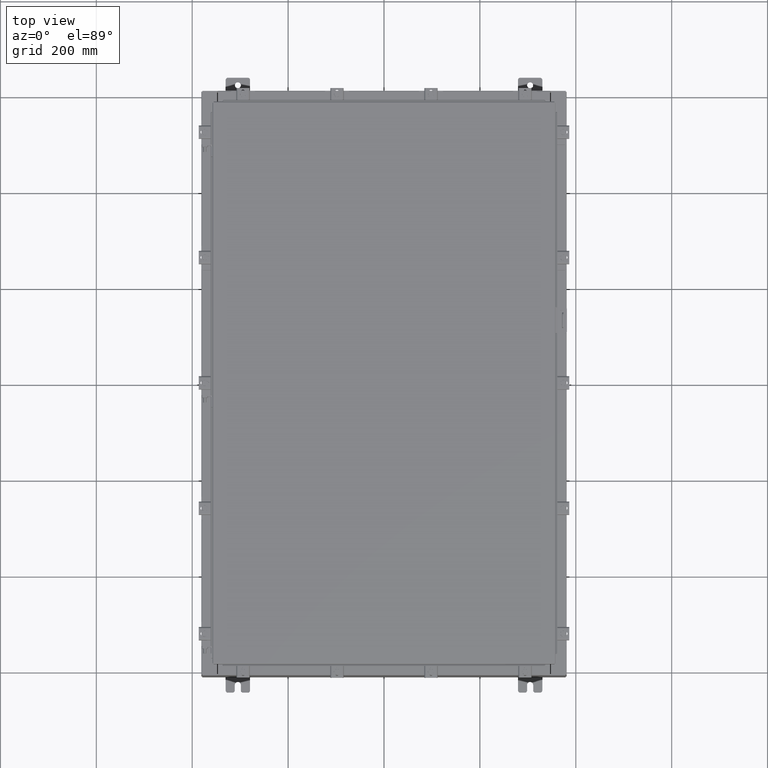
[diagram: clean part render]
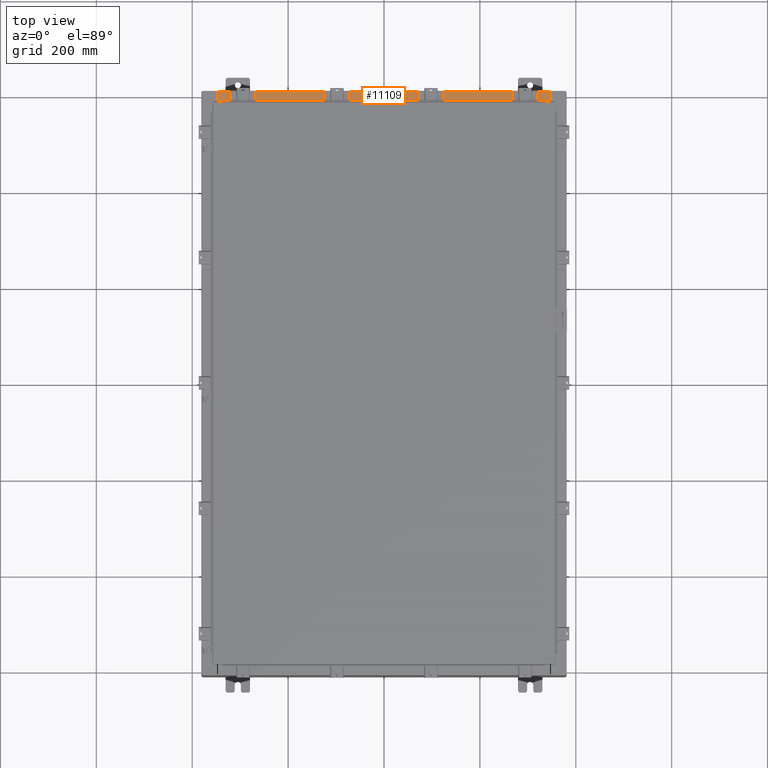
[diagram: same view with one face highlighted and labeled with its STEP entity id]
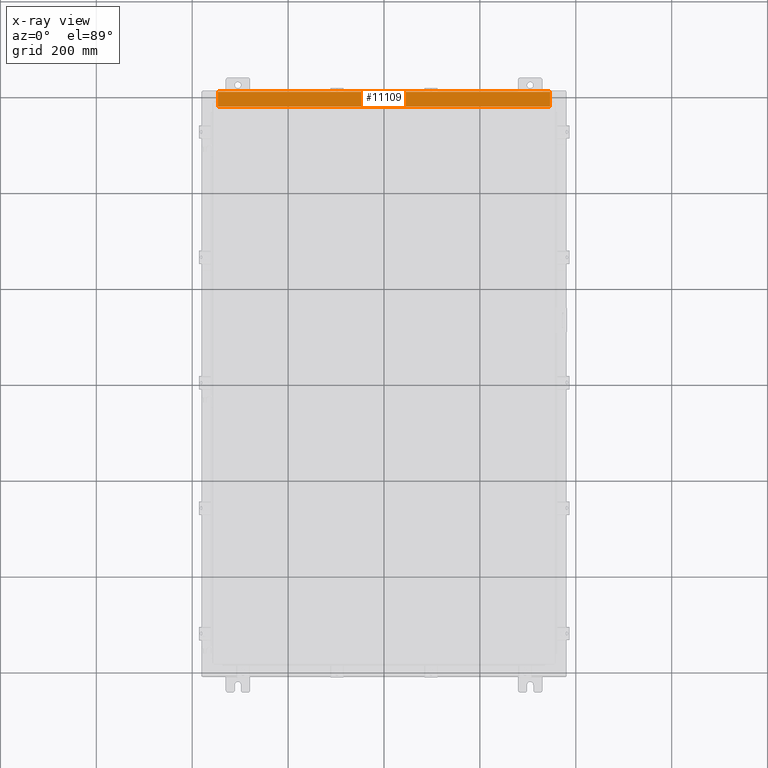
[diagram: x-ray of the same camera — body ghosted, the highlighted face saturated]
A machine part, top view. The second image highlights one B-rep face of the part: STEP entity #11109.
The next image is the same camera in x-ray: the body ghosted, the highlighted face saturated — about 0% of this face is hidden behind the body in this view.
In plain terms, the highlighted planar face has unit normal (0, 0, 1).
Its self-contained STEP definition (entity closure, byte-faithful):
#316 = VERTEX_POINT ( 'NONE', #17586 ) ;
#452 = DIRECTION ( 'NONE',  ( 0.0000000000000000000, -1.000000000000000000, 3.566381192773190000E-015 ) ) ;
#1030 = ORIENTED_EDGE ( 'NONE', *, *, #11809, .T. ) ;
#1437 = DIRECTION ( 'NONE',  ( -0.0000000000000000000, 1.000000000000000000, -3.566381192773190000E-015 ) ) ;
#1697 = CARTESIAN_POINT ( 'NONE',  ( 13.63719999999999800, -1.300299999999999800, 5.000000000000004400 ) ) ;
#3896 = VECTOR ( 'NONE', #16887, 39.37007874015748100 ) ;
#6540 = LINE ( 'NONE', #12174, #7721 ) ;
#6778 = EDGE_CURVE ( 'NONE', #10779, #316, #7583, .T. ) ;
#7583 = LINE ( 'NONE', #18151, #13242 ) ;
#7721 = VECTOR ( 'NONE', #14108, 39.37007874015748100 ) ;
#7882 = ORIENTED_EDGE ( 'NONE', *, *, #6778, .F. ) ;
#8314 = CARTESIAN_POINT ( 'NONE',  ( 13.63719999999999800, -1.287299999999999900, 5.000000000000004400 ) ) ;
#9337 = VECTOR ( 'NONE', #1437, 39.37007874015748100 ) ;
#10200 = CARTESIAN_POINT ( 'NONE',  ( -13.63720000000000400, -0.08770000000000081900, 5.000000000000000000 ) ) ;
#10327 = CARTESIAN_POINT ( 'NONE',  ( 13.63719999999999800, -0.08770000000000047200, 5.000000000000000000 ) ) ;
#10779 = VERTEX_POINT ( 'NONE', #8314 ) ;
#11109 = ADVANCED_FACE ( 'NONE', ( #11921 ), #19408, .T. ) ;
#11792 = DIRECTION ( 'NONE',  ( 0.0000000000000000000, 3.566381192773190000E-015, 1.000000000000000000 ) ) ;
#11809 = EDGE_CURVE ( 'NONE', #20619, #14697, #6540, .T. ) ;
#11921 = FACE_OUTER_BOUND ( 'NONE', #24293, .T. ) ;
#12068 = ORIENTED_EDGE ( 'NONE', *, *, #19112, .F. ) ;
#12174 = CARTESIAN_POINT ( 'NONE',  ( 3.513669507588167300E-018, -0.08770000000000081900, 5.000000000000000000 ) ) ;
#13242 = VECTOR ( 'NONE', #18076, 39.37007874015748100 ) ;
#14108 = DIRECTION ( 'NONE',  ( -1.000000000000000000, -4.006464660875052000E-017, 1.428858021605520200E-031 ) ) ;
#14615 = LINE ( 'NONE', #1697, #3896 ) ;
#14697 = VERTEX_POINT ( 'NONE', #10200 ) ;
#14886 = ORIENTED_EDGE ( 'NONE', *, *, #17178, .F. ) ;
#16887 = DIRECTION ( 'NONE',  ( -0.0000000000000000000, -1.000000000000000000, 3.566381192773190000E-015 ) ) ;
#17178 = EDGE_CURVE ( 'NONE', #316, #14697, #18871, .T. ) ;
#17586 = CARTESIAN_POINT ( 'NONE',  ( -13.63720000000000400, -1.287299999999999200, 5.000000000000004400 ) ) ;
#18076 = DIRECTION ( 'NONE',  ( -1.000000000000000000, 0.0000000000000000000, 0.0000000000000000000 ) ) ;
#18151 = CARTESIAN_POINT ( 'NONE',  ( 13.63719999999999800, -1.287299999999999900, 5.000000000000002700 ) ) ;
#18871 = LINE ( 'NONE', #24146, #9337 ) ;
#19112 = EDGE_CURVE ( 'NONE', #20619, #10779, #14615, .T. ) ;
#19408 = PLANE ( 'NONE',  #24505 ) ;
#20619 = VERTEX_POINT ( 'NONE', #10327 ) ;
#23200 = CARTESIAN_POINT ( 'NONE',  ( 0.0000000000000000000, 1.782631094477737600E-014, 5.000000000000000000 ) ) ;
#24146 = CARTESIAN_POINT ( 'NONE',  ( -13.63720000000000400, -0.07469999999999973900, 5.000000000000000000 ) ) ;
#24293 = EDGE_LOOP ( 'NONE', ( #14886, #7882, #12068, #1030 ) ) ;
#24505 = AXIS2_PLACEMENT_3D ( 'NONE', #23200, #11792, #452 ) ;